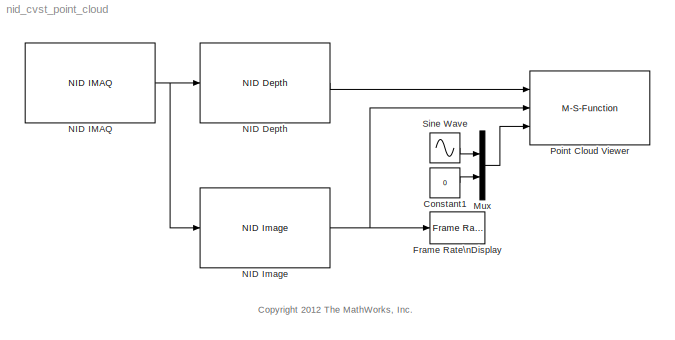
MODEL nid_cvst_point_cloud
KIND model
BLOCK [Constant] Constant1
  SID = 169
  Value = 0
BLOCK [Reference] Frame Rate\nDisplay  REF=vipsnks/Frame Rate\nDisplay
  DialogController = vipDDGCreate
  DialogControllerArgs = DataTag0
  Ports = [1]
  SID = 158
  SourceBlock = vipsnks/Frame Rate\nDisplay
  SourceType = Frame Rate Display
  UpdateRate = 10
BLOCK [Mux] Mux
  DisplayOption = bar
  Inputs = 2
  Ports = [2, 1]
  SID = 170
BLOCK [Reference] NID Depth  REF=nid_lib/NID Depth
  Ports = [1, 1]
  SID = 129
  SourceBlock = nid_lib/NID Depth
  SourceType = NID Depth
  conv_XYZ_RW = on
  depthOutput = XYZ
  viewer = off
BLOCK [Reference] NID IMAQ  REF=nid_lib/NID IMAQ
  Ports = [0, 1]
  SID = 130
  SourceBlock = nid_lib/NID IMAQ
  SourceType = NID IMAQ
  angle = 0
  angle_read = off
  imaq_depth = on
  imaq_image = on
  imaq_ir = off
  imaq_motion = off
  imaq_sample_time = 1/30
  imaq_skeleton = off
  mirror_image = off
  near_mode = off
  needPsiPose = off
  res_fps = VGA (640x480): 30 FPS
  seated_mode = off
  view_point = on
BLOCK [Reference] NID Image  REF=nid_lib/NID Image
  Ports = [1, 1]
  SID = 136
  SourceBlock = nid_lib/NID Image
  SourceType = NID Image
  imageOutput = RGB
BLOCK [M-S-Function] Point Cloud Viewer
  FunctionName = point_cloud_viewer
  MaskDisplay = disp('Point Cloud \\nViewer')\n\nport_label('input', 1, 'XYZ')\nport_label('input', 2, 'Image')\nport_label('input', 3, 'View')\n
  MaskEnableString = on
  MaskIconFrame = on
  MaskIconOpaque = on
  MaskIconRotate = none
  MaskIconUnits = autoscale
  MaskPortRotate = default
  MaskPromptString = Enable view signal
  MaskStyleString = checkbox
  MaskToolTipString = on
  MaskTunableValueString = off
  MaskValueString = off
  MaskVariables = view=@1;
  MaskVisibilityString = on
  Parameters = view
  Ports = [3]
  SID = 135
BLOCK [Sin] Sine Wave
  Amplitude = 90
  Frequency = 0.2
  Ports = [0, 1]
  SID = 171
  Samples = 720
ANNOTATION (root): <copyright redacted>
LINE Constant1:1 -> Mux:2
LINE Mux:1 -> Point Cloud Viewer:3
LINE NID Depth:1 -> Point Cloud Viewer:1
NET NID IMAQ:1 -> NID Depth:1, NID Image:1
NET NID Image:1 -> Frame Rate\nDisplay:1, Point Cloud Viewer:2
LINE Sine Wave:1 -> Mux:1
note: NET lines group one-source signal fan-out (src -> all destinations, sorted); 1:1 wires keep LINE
